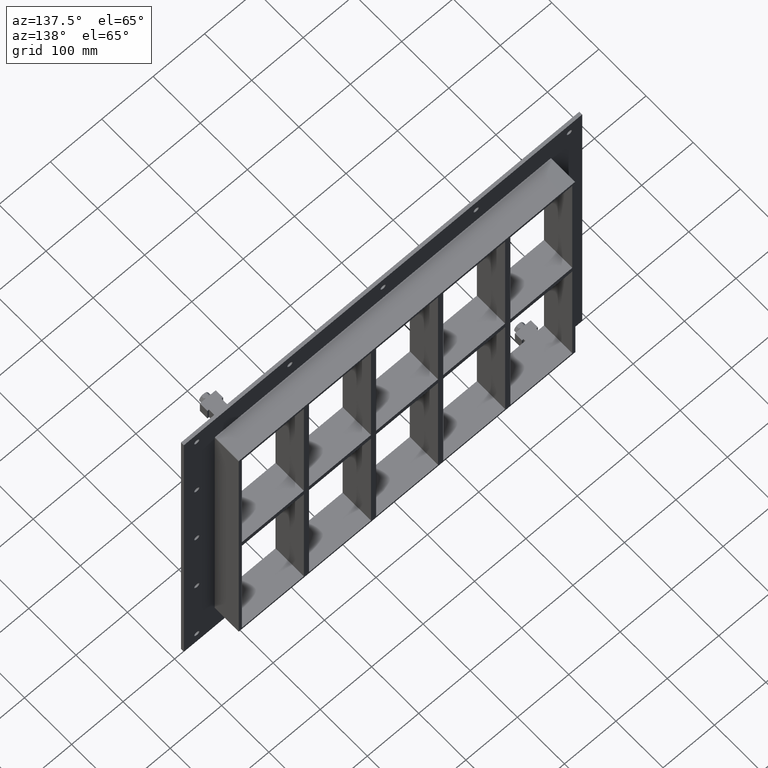
[diagram: clean part render]
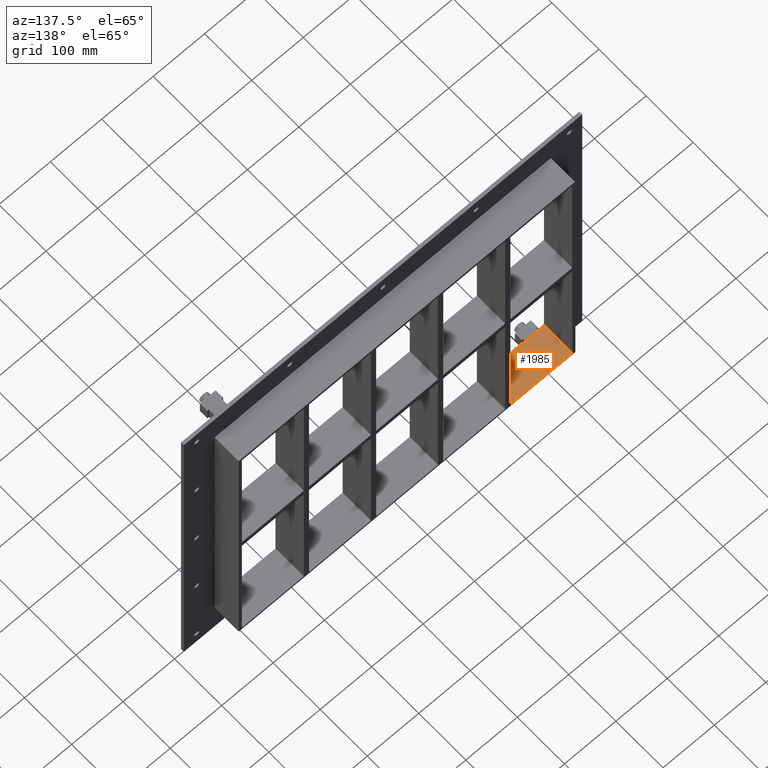
[diagram: same view with one face highlighted and labeled with its STEP entity id]
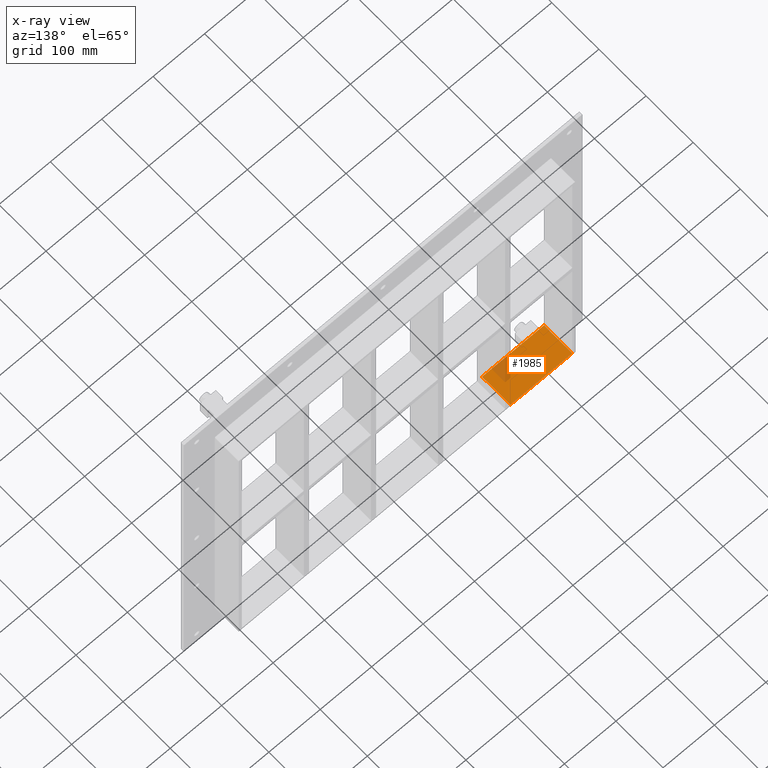
[diagram: x-ray of the same camera — body ghosted, the highlighted face saturated]
A machine part, auxiliary view. The second image highlights one B-rep face of the part: STEP entity #1985.
The next image is the same camera in x-ray: the body ghosted, the highlighted face saturated — about 9% of this face is hidden behind the body in this view.
In plain terms, the highlighted planar face has unit normal (0, 0, -1).
Its self-contained STEP definition (entity closure, byte-faithful):
#1361=CARTESIAN_POINT('',(-200.75000000000017,-3.0,-284.00000000000006));
#1362=VERTEX_POINT('',#1361);
#1369=CARTESIAN_POINT('',(-321.25,-3.0,-284.00000000000006));
#1370=VERTEX_POINT('',#1369);
#1371=CARTESIAN_POINT('',(-200.75000000000017,-3.0,-284.00000000000006));
#1372=DIRECTION('',(-1.0,0.0,0.0));
#1373=VECTOR('',#1372,120.49999999999983);
#1374=LINE('',#1371,#1373);
#1375=EDGE_CURVE('',#1362,#1370,#1374,.T.);
#1640=CARTESIAN_POINT('',(-321.25,57.0,-284.00000000000006));
#1641=VERTEX_POINT('',#1640);
#1648=CARTESIAN_POINT('',(-200.75000000000017,57.0,-284.00000000000006));
#1649=VERTEX_POINT('',#1648);
#1650=CARTESIAN_POINT('',(-321.25,57.0,-284.00000000000006));
#1651=DIRECTION('',(1.0,0.0,0.0));
#1652=VECTOR('',#1651,120.49999999999983);
#1653=LINE('',#1650,#1652);
#1654=EDGE_CURVE('',#1641,#1649,#1653,.T.);
#1947=CARTESIAN_POINT('',(-200.75000000000017,-3.0,-284.00000000000006));
#1948=DIRECTION('',(0.0,1.0,0.0));
#1949=VECTOR('',#1948,60.000000000000007);
#1950=LINE('',#1947,#1949);
#1951=EDGE_CURVE('',#1362,#1649,#1950,.T.);
#1969=CARTESIAN_POINT('',(321.25000000000011,0.0,-284.00000000000006));
#1970=DIRECTION('',(0.0,0.0,-1.0));
#1971=DIRECTION('',(-1.0,0.0,0.0));
#1972=AXIS2_PLACEMENT_3D('',#1969,#1970,#1971);
#1973=PLANE('',#1972);
#1974=ORIENTED_EDGE('',*,*,#1951,.T.);
#1975=ORIENTED_EDGE('',*,*,#1654,.F.);
#1976=CARTESIAN_POINT('',(-321.25,-3.0,-284.00000000000006));
#1977=DIRECTION('',(0.0,1.0,0.0));
#1978=VECTOR('',#1977,60.0);
#1979=LINE('',#1976,#1978);
#1980=EDGE_CURVE('',#1370,#1641,#1979,.T.);
#1981=ORIENTED_EDGE('',*,*,#1980,.F.);
#1982=ORIENTED_EDGE('',*,*,#1375,.F.);
#1983=EDGE_LOOP('',(#1974,#1975,#1981,#1982));
#1984=FACE_OUTER_BOUND('',#1983,.T.);
#1985=ADVANCED_FACE('',(#1984),#1973,.F.);